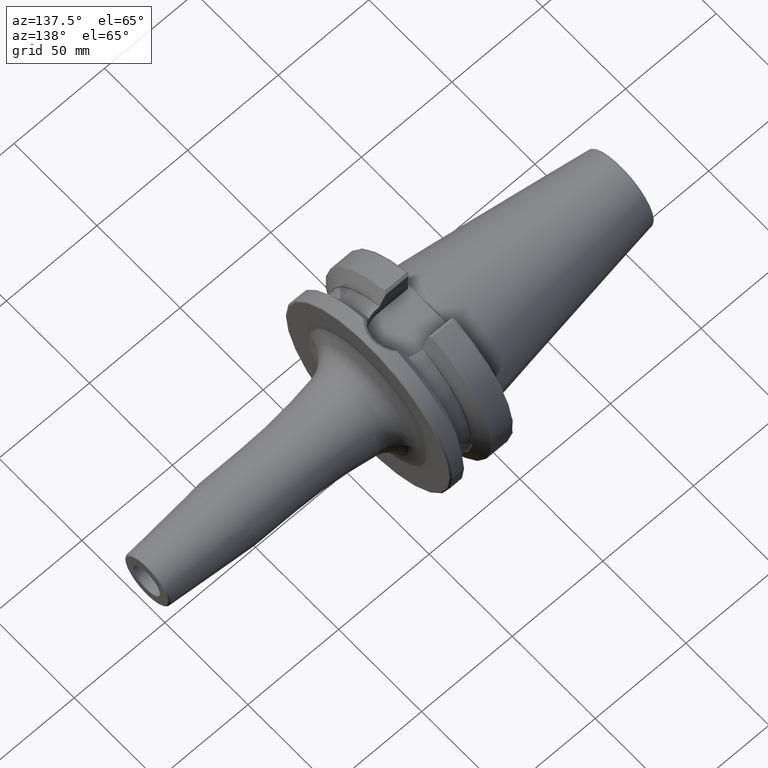
[diagram: clean part render]
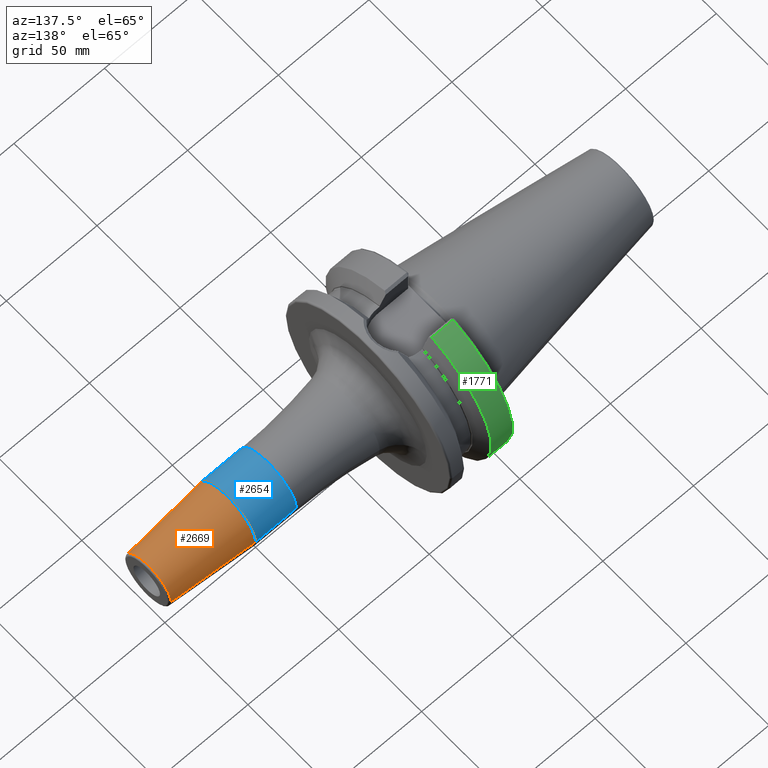
[diagram: same view with three faces highlighted in distinct colors, each labeled with its STEP entity id]
A machine part, auxiliary view with three faces highlighted in distinct colors.
Their STEP definitions:

[orange] entity #2669 — the highlighted conical surface has half-angle 4.5 deg.
#897=CARTESIAN_POINT('',(1.155282834234E2,0.E0,0.E0));
#898=DIRECTION('',(1.E0,0.E0,0.E0));
#899=DIRECTION('',(0.E0,1.E0,0.E0));
#900=AXIS2_PLACEMENT_3D('',#897,#898,#899);
#902=CARTESIAN_POINT('',(1.590784590957E2,0.E0,0.E0));
#903=DIRECTION('',(-1.E0,0.E0,0.E0));
#904=DIRECTION('',(0.E0,-1.E0,0.E0));
#905=AXIS2_PLACEMENT_3D('',#902,#903,#904);
#922=DIRECTION('',(-9.969173337331E-1,7.845909572785E-2,7.699797930834E-14));
#923=VECTOR('',#922,4.368484145948E1);
#924=CARTESIAN_POINT('',(1.590784590957E2,1.357252684207E1,
-3.361562619226E-12));
#925=LINE('',#924,#923);
#926=DIRECTION('',(-9.969173337331E-1,-7.845909572785E-2,-7.691968945458E-14));
#927=VECTOR('',#926,4.368484145948E1);
#928=CARTESIAN_POINT('',(1.590784590957E2,-1.357252684207E1,
3.358142539377E-12));
#929=LINE('',#928,#927);
#1411=CARTESIAN_POINT('',(1.155282834234E2,1.7E1,0.E0));
#1412=CARTESIAN_POINT('',(1.155282834234E2,-1.7E1,0.E0));
#1413=VERTEX_POINT('',#1411);
#1414=VERTEX_POINT('',#1412);
#1423=CARTESIAN_POINT('',(1.590784590957E2,1.357252684207E1,0.E0));
#1424=CARTESIAN_POINT('',(1.590784590957E2,-1.357252684207E1,0.E0));
#1425=VERTEX_POINT('',#1423);
#1426=VERTEX_POINT('',#1424);
#2655=CARTESIAN_POINT('',(1.373033712596E2,0.E0,0.E0));
#2656=DIRECTION('',(-1.E0,0.E0,0.E0));
#2657=DIRECTION('',(0.E0,1.E0,0.E0));
#2658=AXIS2_PLACEMENT_3D('',#2655,#2656,#2657);
#2659=CONICAL_SURFACE('',#2658,1.528626342104E1,4.5E0);
#2661=ORIENTED_EDGE('',*,*,#2660,.F.);
#2663=ORIENTED_EDGE('',*,*,#2662,.T.);
#2664=ORIENTED_EDGE('',*,*,#2649,.F.);
#2666=ORIENTED_EDGE('',*,*,#2665,.F.);
#2667=EDGE_LOOP('',(#2661,#2663,#2664,#2666));
#2668=FACE_OUTER_BOUND('',#2667,.F.);
#2669=ADVANCED_FACE('',(#2668),#2659,.T.);
#901=CIRCLE('',#900,1.7E1);
#906=CIRCLE('',#905,1.357252684207E1);
#2649=EDGE_CURVE('',#1413,#1414,#901,.T.);
#2660=EDGE_CURVE('',#1426,#1425,#906,.T.);
#2662=EDGE_CURVE('',#1426,#1414,#929,.T.);
#2665=EDGE_CURVE('',#1425,#1413,#925,.T.);

[blue] entity #2654 — the highlighted cylindrical surface (partial cylindrical patch) has radius 17 mm, axis along (1, 0, 0).
#879=DIRECTION('',(-1.E0,0.E0,0.E0));
#880=VECTOR('',#879,2.252828342339E1);
#881=CARTESIAN_POINT('',(1.155282834234E2,-1.7E1,0.E0));
#882=LINE('',#881,#880);
#888=DIRECTION('',(-1.E0,0.E0,0.E0));
#889=VECTOR('',#888,2.252828342339E1);
#890=CARTESIAN_POINT('',(1.155282834234E2,1.7E1,0.E0));
#891=LINE('',#890,#889);
#892=CARTESIAN_POINT('',(9.3E1,0.E0,0.E0));
#893=DIRECTION('',(1.E0,0.E0,0.E0));
#894=DIRECTION('',(0.E0,1.E0,0.E0));
#895=AXIS2_PLACEMENT_3D('',#892,#893,#894);
#897=CARTESIAN_POINT('',(1.155282834234E2,0.E0,0.E0));
#898=DIRECTION('',(1.E0,0.E0,0.E0));
#899=DIRECTION('',(0.E0,1.E0,0.E0));
#900=AXIS2_PLACEMENT_3D('',#897,#898,#899);
#1411=CARTESIAN_POINT('',(1.155282834234E2,1.7E1,0.E0));
#1412=CARTESIAN_POINT('',(1.155282834234E2,-1.7E1,0.E0));
#1413=VERTEX_POINT('',#1411);
#1414=VERTEX_POINT('',#1412);
#1431=CARTESIAN_POINT('',(9.3E1,1.7E1,0.E0));
#1432=CARTESIAN_POINT('',(9.3E1,-1.7E1,0.E0));
#1433=VERTEX_POINT('',#1431);
#1434=VERTEX_POINT('',#1432);
#2642=CARTESIAN_POINT('',(3.19E1,0.E0,0.E0));
#2643=DIRECTION('',(1.E0,0.E0,0.E0));
#2644=DIRECTION('',(0.E0,-1.E0,0.E0));
#2645=AXIS2_PLACEMENT_3D('',#2642,#2643,#2644);
#2646=CYLINDRICAL_SURFACE('',#2645,1.7E1);
#2647=ORIENTED_EDGE('',*,*,#2607,.F.);
#2648=ORIENTED_EDGE('',*,*,#2637,.F.);
#2650=ORIENTED_EDGE('',*,*,#2649,.T.);
#2651=ORIENTED_EDGE('',*,*,#2633,.T.);
#2652=EDGE_LOOP('',(#2647,#2648,#2650,#2651));
#2653=FACE_OUTER_BOUND('',#2652,.F.);
#2654=ADVANCED_FACE('',(#2653),#2646,.T.);
#896=CIRCLE('',#895,1.7E1);
#901=CIRCLE('',#900,1.7E1);
#2607=EDGE_CURVE('',#1433,#1434,#896,.T.);
#2633=EDGE_CURVE('',#1414,#1434,#882,.T.);
#2637=EDGE_CURVE('',#1413,#1433,#891,.T.);
#2649=EDGE_CURVE('',#1413,#1414,#901,.T.);

[green] entity #1771 — the highlighted cylindrical surface (partial cylindrical patch) has radius 49.9875 mm, axis along (1, 0, 0).
#227=CARTESIAN_POINT('',(4.E0,0.E0,0.E0));
#228=DIRECTION('',(-1.E0,0.E0,0.E0));
#229=DIRECTION('',(0.E0,2.837968869610E-1,9.588844179312E-1));
#230=AXIS2_PLACEMENT_3D('',#227,#228,#229);
#232=DIRECTION('',(-1.E0,-7.302338022926E-8,-9.708531933347E-8));
#233=VECTOR('',#232,1.166933176412E1);
#234=CARTESIAN_POINT('',(1.566933176383E1,1.386327333875E1,-4.802665727057E1));
#235=LINE('',#234,#233);
#236=CARTESIAN_POINT('',(1.566933176383E1,0.E0,0.E0));
#237=DIRECTION('',(1.E0,0.E0,0.E0));
#238=DIRECTION('',(0.E0,2.773348004750E-1,-9.607733387462E-1));
#239=AXIS2_PLACEMENT_3D('',#236,#237,#238);
#241=DIRECTION('',(9.999999999989E-1,8.887251737038E-7,-1.189757232592E-6));
#242=VECTOR('',#241,1.166933177277E1);
#243=CARTESIAN_POINT('',(3.999999991073E0,1.418628651613E1,4.793224872501E1));
#244=LINE('',#243,#242);
#571=CARTESIAN_POINT('',(3.999999999701E0,1.386327248661E1,-4.802665840350E1));
#1362=CARTESIAN_POINT('',(1.566933176383E1,1.386327333875E1,-4.802665727057E1));
#1363=CARTESIAN_POINT('',(1.566933176383E1,1.418629688696E1,4.793223484134E1));
#1364=VERTEX_POINT('',#1362);
#1365=VERTEX_POINT('',#1363);
#1377=CARTESIAN_POINT('',(4.E0,1.418631682991E1,4.793222893890E1));
#1379=VERTEX_POINT('',#1377);
#1394=VERTEX_POINT('',#571);
#1757=CARTESIAN_POINT('',(-1.0879E2,0.E0,0.E0));
#1758=DIRECTION('',(1.E0,0.E0,0.E0));
#1759=DIRECTION('',(0.E0,-1.E0,0.E0));
#1760=AXIS2_PLACEMENT_3D('',#1757,#1758,#1759);
#1761=CYLINDRICAL_SURFACE('',#1760,4.99875E1);
#1763=ORIENTED_EDGE('',*,*,#1762,.T.);
#1765=ORIENTED_EDGE('',*,*,#1764,.F.);
#1766=ORIENTED_EDGE('',*,*,#1710,.T.);
#1768=ORIENTED_EDGE('',*,*,#1767,.F.);
#1769=EDGE_LOOP('',(#1763,#1765,#1766,#1768));
#1770=FACE_OUTER_BOUND('',#1769,.F.);
#1771=ADVANCED_FACE('',(#1770),#1761,.T.);
#231=CIRCLE('',#230,4.99875E1);
#240=CIRCLE('',#239,4.99875E1);
#1710=EDGE_CURVE('',#1364,#1365,#240,.T.);
#1762=EDGE_CURVE('',#1379,#1394,#231,.T.);
#1764=EDGE_CURVE('',#1364,#1394,#235,.T.);
#1767=EDGE_CURVE('',#1379,#1365,#244,.T.);